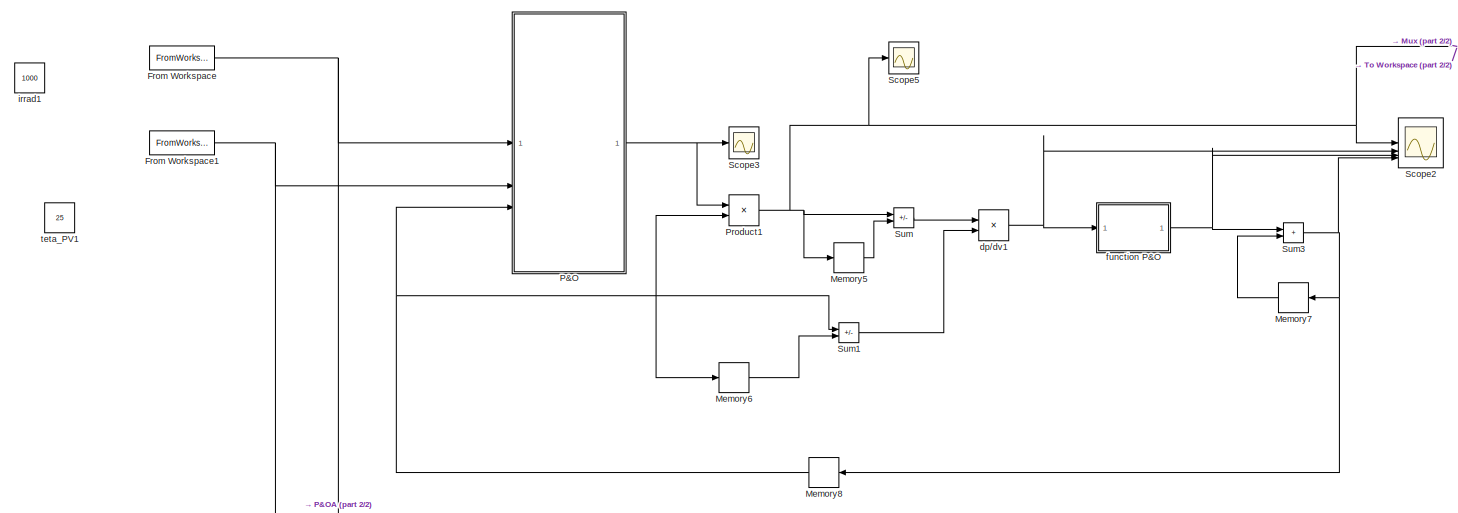
[diagram: root canvas - part 1/2, full width, top band]
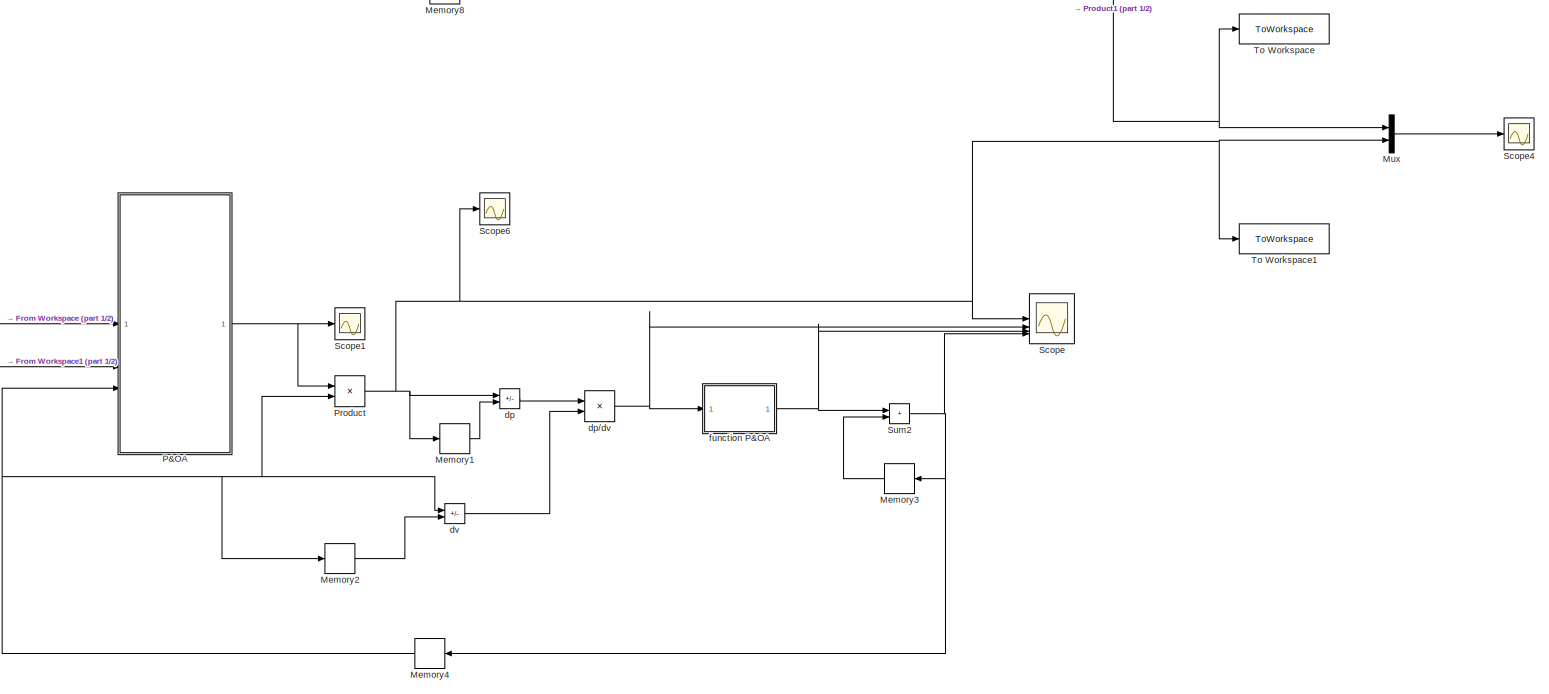
[diagram: root canvas - part 2/2, full width, bottom band]
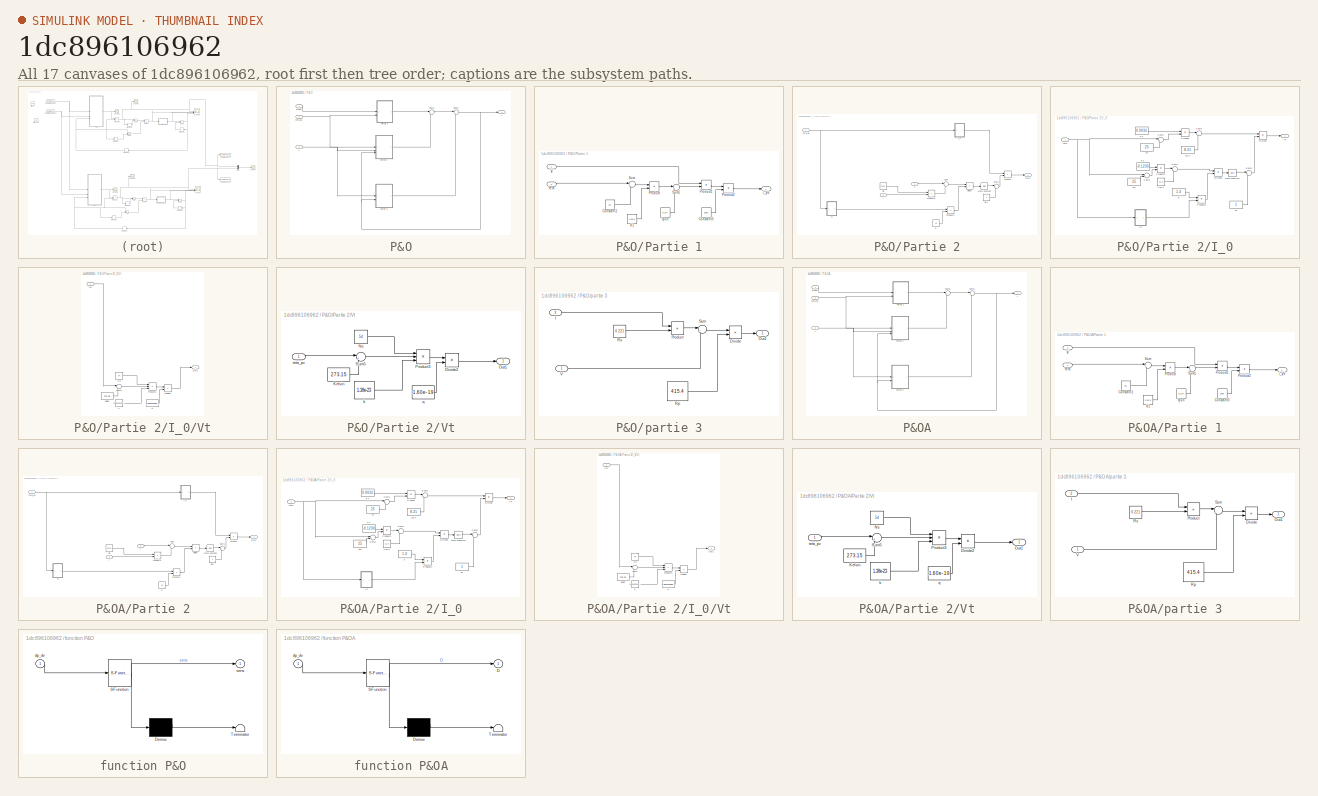
[diagram: thumbnail index - all 17 canvases of the model, root first then tree order]
MODEL slx_1dc896106962
KIND model
CONFIG AbsTol = auto
CONFIG EnableMultiTasking = off
CONFIG FixedStep = 4
CONFIG MaxStep = auto
CONFIG MinStep = auto
CONFIG RelTol = 1e-3
CONFIG SampleTimeConstraint = Unconstrained
CONFIG SolverName = ode1
CONFIG StartTime = 0.0
CONFIG StopTime = 86400
BLOCK [FromWorkspace] From Workspace
  VariableName = j_irradiance
BLOCK [FromWorkspace] From Workspace1
  VariableName = j_temperature
BLOCK [Memory] Memory1
BLOCK [Memory] Memory2
BLOCK [Memory] Memory3
  NameLocation = top
BLOCK [Memory] Memory4
  NameLocation = top
BLOCK [Memory] Memory5
BLOCK [Memory] Memory6
BLOCK [Memory] Memory7
  NameLocation = top
BLOCK [Memory] Memory8
  NameLocation = top
BLOCK [Mux] Mux
  DisplayOption = bar
  Inputs = 2
BLOCK [SubSystem] P&O
BLOCK [SubSystem] P&O/Partie 1
BLOCK [Constant] P&O/Partie 1/Constant1
  Value = 25
BLOCK [Constant] P&O/Partie 1/Constant3
  Value = 1000
BLOCK [Constant] P&O/Partie 1/Ipv,n
  Value = 8.214
BLOCK [Constant] P&O/Partie 1/K1
  Value = 3.2e-3
BLOCK [Product] P&O/Partie 1/Product
BLOCK [Product] P&O/Partie 1/Product1
BLOCK [Product] P&O/Partie 1/Product2
  Inputs = */
BLOCK [Sum] P&O/Partie 1/Sum
  Inputs = |+-
BLOCK [Sum] P&O/Partie 1/Sum1
  Inputs = |++
BLOCK [Inport] P&O/Partie 1/g
BLOCK [Outport] P&O/Partie 1/i_pv
BLOCK [Inport] P&O/Partie 1/teta
  Port = 2
BLOCK [SubSystem] P&O/Partie 2
BLOCK [Product] P&O/Partie 2/Divide
  Inputs = */
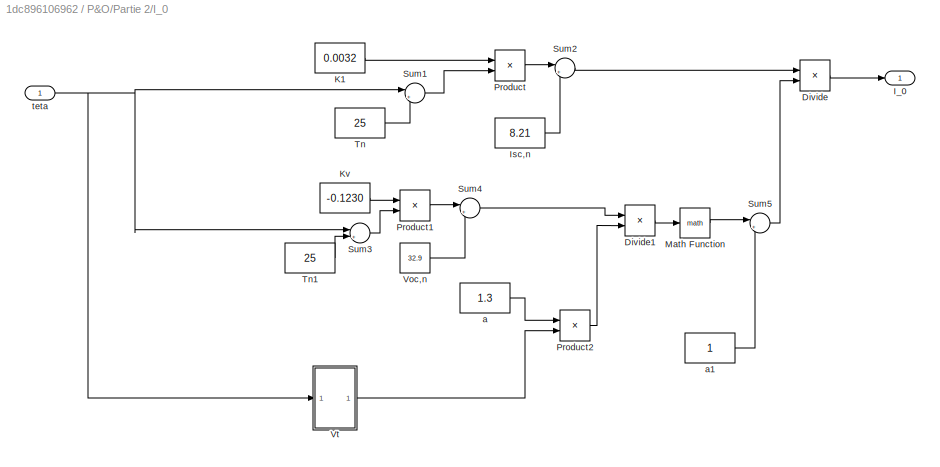
BLOCK [SubSystem] P&O/Partie 2/I_0
BLOCK [Product] P&O/Partie 2/I_0/Divide
  Inputs = */
BLOCK [Product] P&O/Partie 2/I_0/Divide1
  Inputs = */
BLOCK [Outport] P&O/Partie 2/I_0/I_0
BLOCK [Constant] P&O/Partie 2/I_0/Isc,n
  Value = 8.21
BLOCK [Constant] P&O/Partie 2/I_0/K1
  Value = 0.0032
BLOCK [Constant] P&O/Partie 2/I_0/Kv
  Value = -0.1230
BLOCK [Math] P&O/Partie 2/I_0/Math Function
BLOCK [Product] P&O/Partie 2/I_0/Product
BLOCK [Product] P&O/Partie 2/I_0/Product1
BLOCK [Product] P&O/Partie 2/I_0/Product2
BLOCK [Sum] P&O/Partie 2/I_0/Sum1
  Inputs = |+-
BLOCK [Sum] P&O/Partie 2/I_0/Sum2
  Inputs = |++
BLOCK [Sum] P&O/Partie 2/I_0/Sum3
  Inputs = |+-
BLOCK [Sum] P&O/Partie 2/I_0/Sum4
  Inputs = |++
BLOCK [Sum] P&O/Partie 2/I_0/Sum5
  Inputs = |+-
BLOCK [Constant] P&O/Partie 2/I_0/Tn
  Value = 25
BLOCK [Constant] P&O/Partie 2/I_0/Tn1
  Value = 25
BLOCK [Constant] P&O/Partie 2/I_0/Voc,n
  Value = 32.9
BLOCK [SubSystem] P&O/Partie 2/I_0/Vt
BLOCK [Product] P&O/Partie 2/I_0/Vt/Divide2
  Inputs = */
BLOCK [Inport] P&O/Partie 2/I_0/Vt/In1
BLOCK [Constant] P&O/Partie 2/I_0/Vt/Kelvin
  Value = 273.15
BLOCK [Constant] P&O/Partie 2/I_0/Vt/Ns
  Value = 54
BLOCK [Outport] P&O/Partie 2/I_0/Vt/Out1
BLOCK [Product] P&O/Partie 2/I_0/Vt/Product3
  Inputs = 3
BLOCK [Sum] P&O/Partie 2/I_0/Vt/Sum5
  Inputs = |++
BLOCK [Constant] P&O/Partie 2/I_0/Vt/k
  Value = 1.3806503e-23
BLOCK [Constant] P&O/Partie 2/I_0/Vt/q
  Value = 1.60217646e-19
BLOCK [Constant] P&O/Partie 2/I_0/a
  Value = 1.3
BLOCK [Constant] P&O/Partie 2/I_0/a1
BLOCK [Inport] P&O/Partie 2/I_0/teta
BLOCK [Math] P&O/Partie 2/Math Function
BLOCK [Outport] P&O/Partie 2/Out2
BLOCK [Product] P&O/Partie 2/Product
BLOCK [Product] P&O/Partie 2/Product1
BLOCK [Product] P&O/Partie 2/Product2
BLOCK [Constant] P&O/Partie 2/Rs
  Value = 0.221
BLOCK [Constant] P&O/Partie 2/Rs1
BLOCK [Sum] P&O/Partie 2/Sum
  Inputs = |++
BLOCK [Sum] P&O/Partie 2/Sum1
  Inputs = |+-
BLOCK [Inport] P&O/Partie 2/V
  Port = 2
BLOCK [SubSystem] P&O/Partie 2/Vt
BLOCK [Product] P&O/Partie 2/Vt/Divide2
  Inputs = */
BLOCK [Constant] P&O/Partie 2/Vt/Kelvin
  Value = 273.15
BLOCK [Constant] P&O/Partie 2/Vt/Ns
  Value = 54
BLOCK [Outport] P&O/Partie 2/Vt/Out1
BLOCK [Product] P&O/Partie 2/Vt/Product3
  Inputs = 3
BLOCK [Sum] P&O/Partie 2/Vt/Sum5
  Inputs = |++
BLOCK [Constant] P&O/Partie 2/Vt/k
  Value = 1.38e-23
BLOCK [Constant] P&O/Partie 2/Vt/q
  Value = 1.60e-19
BLOCK [Inport] P&O/Partie 2/Vt/teta_pv
BLOCK [Constant] P&O/Partie 2/a
  Value = 1.3
BLOCK [Inport] P&O/Partie 2/i
  Port = 3
BLOCK [Inport] P&O/Partie 2/teta_pv
BLOCK [Sum] P&O/Sum6
  Inputs = |+-
BLOCK [Sum] P&O/Sum8
  Inputs = |+-
BLOCK [Inport] P&O/V
  Port = 3
BLOCK [Outport] P&O/i
BLOCK [Inport] P&O/irrad1
BLOCK [SubSystem] P&O/partie 3
BLOCK [Product] P&O/partie 3/Divide
  Inputs = */
BLOCK [Inport] P&O/partie 3/I
  Port = 2
BLOCK [Outport] P&O/partie 3/Out1
BLOCK [Product] P&O/partie 3/Product
BLOCK [Constant] P&O/partie 3/Rp
  Value = 415.4
BLOCK [Constant] P&O/partie 3/Rs
  Value = 0.221
BLOCK [Sum] P&O/partie 3/Sum
  Inputs = |++
BLOCK [Inport] P&O/partie 3/V
BLOCK [Inport] P&O/teta_pv
  Port = 2
BLOCK [SubSystem] P&OA
BLOCK [SubSystem] P&OA/Partie 1
BLOCK [Constant] P&OA/Partie 1/Constant1
  Value = 25
BLOCK [Constant] P&OA/Partie 1/Constant3
  Value = 1000
BLOCK [Constant] P&OA/Partie 1/Ipv,n
  Value = 8.214
BLOCK [Constant] P&OA/Partie 1/K1
  Value = 3.2e-3
BLOCK [Product] P&OA/Partie 1/Product
BLOCK [Product] P&OA/Partie 1/Product1
BLOCK [Product] P&OA/Partie 1/Product2
  Inputs = */
BLOCK [Sum] P&OA/Partie 1/Sum
  Inputs = |+-
BLOCK [Sum] P&OA/Partie 1/Sum1
  Inputs = |++
BLOCK [Inport] P&OA/Partie 1/g
BLOCK [Outport] P&OA/Partie 1/i_pv
BLOCK [Inport] P&OA/Partie 1/teta
  Port = 2
BLOCK [SubSystem] P&OA/Partie 2
BLOCK [Product] P&OA/Partie 2/Divide
  Inputs = */
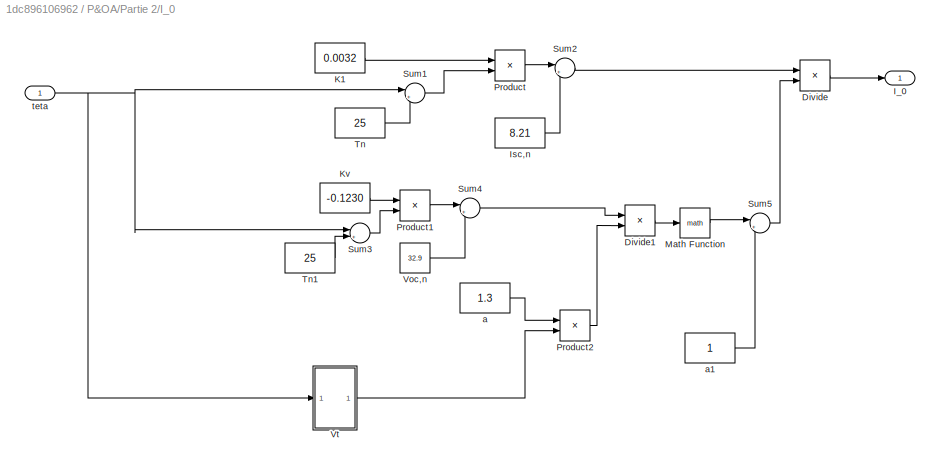
BLOCK [SubSystem] P&OA/Partie 2/I_0
BLOCK [Product] P&OA/Partie 2/I_0/Divide
  Inputs = */
BLOCK [Product] P&OA/Partie 2/I_0/Divide1
  Inputs = */
BLOCK [Outport] P&OA/Partie 2/I_0/I_0
BLOCK [Constant] P&OA/Partie 2/I_0/Isc,n
  Value = 8.21
BLOCK [Constant] P&OA/Partie 2/I_0/K1
  Value = 0.0032
BLOCK [Constant] P&OA/Partie 2/I_0/Kv
  Value = -0.1230
BLOCK [Math] P&OA/Partie 2/I_0/Math Function
BLOCK [Product] P&OA/Partie 2/I_0/Product
BLOCK [Product] P&OA/Partie 2/I_0/Product1
BLOCK [Product] P&OA/Partie 2/I_0/Product2
BLOCK [Sum] P&OA/Partie 2/I_0/Sum1
  Inputs = |+-
BLOCK [Sum] P&OA/Partie 2/I_0/Sum2
  Inputs = |++
BLOCK [Sum] P&OA/Partie 2/I_0/Sum3
  Inputs = |+-
BLOCK [Sum] P&OA/Partie 2/I_0/Sum4
  Inputs = |++
BLOCK [Sum] P&OA/Partie 2/I_0/Sum5
  Inputs = |+-
BLOCK [Constant] P&OA/Partie 2/I_0/Tn
  Value = 25
BLOCK [Constant] P&OA/Partie 2/I_0/Tn1
  Value = 25
BLOCK [Constant] P&OA/Partie 2/I_0/Voc,n
  Value = 32.9
BLOCK [SubSystem] P&OA/Partie 2/I_0/Vt
BLOCK [Product] P&OA/Partie 2/I_0/Vt/Divide2
  Inputs = */
BLOCK [Inport] P&OA/Partie 2/I_0/Vt/In1
BLOCK [Constant] P&OA/Partie 2/I_0/Vt/Kelvin
  Value = 273.15
BLOCK [Constant] P&OA/Partie 2/I_0/Vt/Ns
  Value = 54
BLOCK [Outport] P&OA/Partie 2/I_0/Vt/Out1
BLOCK [Product] P&OA/Partie 2/I_0/Vt/Product3
  Inputs = 3
BLOCK [Sum] P&OA/Partie 2/I_0/Vt/Sum5
  Inputs = |++
BLOCK [Constant] P&OA/Partie 2/I_0/Vt/k
  Value = 1.3806503e-23
BLOCK [Constant] P&OA/Partie 2/I_0/Vt/q
  Value = 1.60217646e-19
BLOCK [Constant] P&OA/Partie 2/I_0/a
  Value = 1.3
BLOCK [Constant] P&OA/Partie 2/I_0/a1
BLOCK [Inport] P&OA/Partie 2/I_0/teta
BLOCK [Math] P&OA/Partie 2/Math Function
BLOCK [Outport] P&OA/Partie 2/Out2
BLOCK [Product] P&OA/Partie 2/Product
BLOCK [Product] P&OA/Partie 2/Product1
BLOCK [Product] P&OA/Partie 2/Product2
BLOCK [Constant] P&OA/Partie 2/Rs
  Value = 0.221
BLOCK [Constant] P&OA/Partie 2/Rs1
BLOCK [Sum] P&OA/Partie 2/Sum
  Inputs = |++
BLOCK [Sum] P&OA/Partie 2/Sum1
  Inputs = |+-
BLOCK [Inport] P&OA/Partie 2/V
  Port = 2
BLOCK [SubSystem] P&OA/Partie 2/Vt
BLOCK [Product] P&OA/Partie 2/Vt/Divide2
  Inputs = */
BLOCK [Constant] P&OA/Partie 2/Vt/Kelvin
  Value = 273.15
BLOCK [Constant] P&OA/Partie 2/Vt/Ns
  Value = 54
BLOCK [Outport] P&OA/Partie 2/Vt/Out1
BLOCK [Product] P&OA/Partie 2/Vt/Product3
  Inputs = 3
BLOCK [Sum] P&OA/Partie 2/Vt/Sum5
  Inputs = |++
BLOCK [Constant] P&OA/Partie 2/Vt/k
  Value = 1.38e-23
BLOCK [Constant] P&OA/Partie 2/Vt/q
  Value = 1.60e-19
BLOCK [Inport] P&OA/Partie 2/Vt/teta_pv
BLOCK [Constant] P&OA/Partie 2/a
  Value = 1.3
BLOCK [Inport] P&OA/Partie 2/i
  Port = 3
BLOCK [Inport] P&OA/Partie 2/teta_pv
BLOCK [Sum] P&OA/Sum6
  Inputs = |+-
BLOCK [Sum] P&OA/Sum8
  Inputs = |+-
BLOCK [Inport] P&OA/V
  Port = 3
BLOCK [Outport] P&OA/i
BLOCK [Inport] P&OA/irrad1
BLOCK [SubSystem] P&OA/partie 3
BLOCK [Product] P&OA/partie 3/Divide
  Inputs = */
BLOCK [Inport] P&OA/partie 3/I
  Port = 2
BLOCK [Outport] P&OA/partie 3/Out1
BLOCK [Product] P&OA/partie 3/Product
BLOCK [Constant] P&OA/partie 3/Rp
  Value = 415.4
BLOCK [Constant] P&OA/partie 3/Rs
  Value = 0.221
BLOCK [Sum] P&OA/partie 3/Sum
  Inputs = |++
BLOCK [Inport] P&OA/partie 3/V
BLOCK [Inport] P&OA/teta_pv
  Port = 2
BLOCK [Product] Product
BLOCK [Product] Product1
BLOCK [Scope] Scope
  Floating = off
  NumInputPorts = 4
  ScopeSpecificationString = Simulink.scopes.TimeScopeBlockCfg('CurrentConfiguration', extmgr.ConfigurationSet(extmgr.Configuration('Core','General UI',true),extmgr.Configuration('Core','Source UI',true),extmgr.Configuration('Sources','WiredSimulink',true),extmgr.Configuration('Visuals','Time Domain',true,'SerializedDisplays',{struct('MinYLimReal','-25.08659','MaxYLimReal','225.36884','YLabelReal','','MinYLimMag','0.00000','M...<+3484ch>
BLOCK [Scope] Scope1
  Floating = off
  NumInputPorts = 1
  ScopeSpecificationString = Simulink.scopes.TimeScopeBlockCfg('CurrentConfiguration', extmgr.ConfigurationSet(extmgr.Configuration('Core','General UI',true),extmgr.Configuration('Core','Source UI',true),extmgr.Configuration('Sources','WiredSimulink',true,'DataLoggingVariableName','ScopeData1'),extmgr.Configuration('Visuals','Time Domain',true,'SerializedDisplays',{struct('MinYLimReal','-0.00917','MaxYLimReal','0.07977','YLab...<+1389ch>
BLOCK [Scope] Scope2
  Floating = off
  NumInputPorts = 4
  ScopeSpecificationString = Simulink.scopes.TimeScopeBlockCfg('CurrentConfiguration', extmgr.ConfigurationSet(extmgr.Configuration('Core','General UI',true),extmgr.Configuration('Core','Source UI',true),extmgr.Configuration('Sources','WiredSimulink',true,'DataLoggingVariableName','ScopeData1'),extmgr.Configuration('Visuals','Time Domain',true,'SerializedDisplays',{struct('MinYLimReal','-0.08078','MaxYLimReal','0.1454','YLabe...<+3462ch>
BLOCK [Scope] Scope3
  Floating = off
  NumInputPorts = 1
  ScopeSpecificationString = Simulink.scopes.TimeScopeBlockCfg('CurrentConfiguration', extmgr.ConfigurationSet(extmgr.Configuration('Core','General UI',true),extmgr.Configuration('Core','Source UI',true),extmgr.Configuration('Sources','WiredSimulink',true,'DataLoggingVariableName','ScopeData2'),extmgr.Configuration('Visuals','Time Domain',true,'SerializedDisplays',{struct('MinYLimReal','-0.01969','MaxYLimReal','0.08098','YLab...<+1388ch>
BLOCK [Scope] Scope4
  Floating = off
  NumInputPorts = 1
  ScopeSpecificationString = Simulink.scopes.TimeScopeBlockCfg('CurrentConfiguration', extmgr.ConfigurationSet(extmgr.Configuration('Core','General UI',true),extmgr.Configuration('Core','Source UI',true),extmgr.Configuration('Sources','WiredSimulink',true,'DataLoggingVariableName','ScopeData1'),extmgr.Configuration('Visuals','Time Domain',true,'SerializedDisplays',{struct('MinYLimReal','-11.29218','MaxYLimReal','97.86409','YL...<+1496ch>
BLOCK [Scope] Scope5
  Floating = off
  NumInputPorts = 1
  ScopeSpecificationString = Simulink.scopes.TimeScopeBlockCfg('CurrentConfiguration', extmgr.ConfigurationSet(extmgr.Configuration('Core','General UI',true),extmgr.Configuration('Core','Source UI',true),extmgr.Configuration('Sources','WiredSimulink',true,'DataLoggingVariableName','ScopeData1'),extmgr.Configuration('Visuals','Time Domain',true,'SerializedDisplays',{struct('MinYLimReal','-0.01969','MaxYLimReal','0.08098','YLab...<+1388ch>
BLOCK [Scope] Scope6
  Floating = off
  NumInputPorts = 1
  ScopeSpecificationString = Simulink.scopes.TimeScopeBlockCfg('CurrentConfiguration', extmgr.ConfigurationSet(extmgr.Configuration('Core','General UI',true),extmgr.Configuration('Core','Source UI',true),extmgr.Configuration('Sources','WiredSimulink',true,'DataLoggingVariableName','ScopeData2'),extmgr.Configuration('Visuals','Time Domain',true,'SerializedDisplays',{struct('MinYLimReal','-0.01969','MaxYLimReal','0.08098','YLab...<+1388ch>
BLOCK [Sum] Sum
  IconShape = rectangular
  Inputs = +-
BLOCK [Sum] Sum1
  IconShape = rectangular
  Inputs = +-
BLOCK [Sum] Sum2
  IconShape = rectangular
BLOCK [Sum] Sum3
  IconShape = rectangular
BLOCK [ToWorkspace] To Workspace
  FixptAsFi = on
  MaxDataPoints = inf
  SampleTime = -1
  VariableName = PO
BLOCK [ToWorkspace] To Workspace1
  FixptAsFi = on
  MaxDataPoints = inf
  SampleTime = -1
  VariableName = POA
BLOCK [Sum] dp
  IconShape = rectangular
  Inputs = +-
BLOCK [Product] dp//dv
  Inputs = */
BLOCK [Product] dp//dv1
  Inputs = */
BLOCK [Sum] dv
  IconShape = rectangular
  Inputs = +-
BLOCK [SubSystem] function P&O
  ErrorFcn = Stateflow.Translate.translate
  PermitHierarchicalResolution = ExplicitOnly
  SFBlockType = MATLAB Function
  TreatAsAtomicUnit = on
BLOCK [Demux] function P&O/ Demux 
  Outputs = 1
BLOCK [S-Function] function P&O/ SFunction 
  EnableBusSupport = on
  FunctionName = sf_sfun
  PortCounts = [1 2]
  SFcnIsStateOwnerBlock = off
  SFunctionDeploymentMode = off
  Tag = Stateflow S-Function 1
BLOCK [Terminator] function P&O/ Terminator 
BLOCK [Inport] function P&O/dp_dv
BLOCK [Outport] function P&O/sens
BLOCK [SubSystem] function P&OA
  ErrorFcn = Stateflow.Translate.translate
  PermitHierarchicalResolution = ExplicitOnly
  SFBlockType = MATLAB Function
  TreatAsAtomicUnit = on
BLOCK [Demux] function P&OA/ Demux 
  Outputs = 1
BLOCK [S-Function] function P&OA/ SFunction 
  EnableBusSupport = on
  FunctionName = sf_sfun
  PortCounts = [1 2]
  SFcnIsStateOwnerBlock = off
  SFunctionDeploymentMode = off
  Tag = Stateflow S-Function 2
BLOCK [Terminator] function P&OA/ Terminator 
BLOCK [Outport] function P&OA/D
BLOCK [Inport] function P&OA/dp_dv
BLOCK [Constant] irrad1
  Value = 1000
BLOCK [Constant] teta_PV1
  Value = 25
NET From Workspace1:1 -> P&O:2, P&OA:2
NET From Workspace:1 -> P&O:1, P&OA:1
LINE Memory1:1 -> dp:2
LINE Memory2:1 -> dv:2
LINE Memory3:1 -> Sum2:2
NET Memory4:1 -> Memory2:1, P&OA:3, Product:2, dv:1
LINE Memory5:1 -> Sum:2
LINE Memory6:1 -> Sum1:2
LINE Memory7:1 -> Sum3:2
NET Memory8:1 -> Memory6:1, P&O:3, Product1:2, Sum1:1
LINE Mux:1 -> Scope4:1
LINE P&O/Partie 1/Constant1:1 -> P&O/Partie 1/Sum:2
LINE P&O/Partie 1/Constant3:1 -> P&O/Partie 1/Product2:2
LINE P&O/Partie 1/Ipv,n:1 -> P&O/Partie 1/Sum1:2
LINE P&O/Partie 1/K1:1 -> P&O/Partie 1/Product:2
LINE P&O/Partie 1/Product1:1 -> P&O/Partie 1/Product2:1
LINE P&O/Partie 1/Product2:1 -> P&O/Partie 1/i_pv:1
LINE P&O/Partie 1/Product:1 -> P&O/Partie 1/Sum1:1
LINE P&O/Partie 1/Sum1:1 -> P&O/Partie 1/Product1:2
LINE P&O/Partie 1/Sum:1 -> P&O/Partie 1/Product:1
LINE P&O/Partie 1/g:1 -> P&O/Partie 1/Product1:1
LINE P&O/Partie 1/teta:1 -> P&O/Partie 1/Sum:1
LINE P&O/Partie 1:1 -> P&O/Sum6:1
LINE P&O/Partie 2/Divide:1 -> P&O/Partie 2/Math Function:1
LINE P&O/Partie 2/I_0/Divide1:1 -> P&O/Partie 2/I_0/Math Function:1
LINE P&O/Partie 2/I_0/Divide:1 -> P&O/Partie 2/I_0/I_0:1
LINE P&O/Partie 2/I_0/Isc,n:1 -> P&O/Partie 2/I_0/Sum2:2
LINE P&O/Partie 2/I_0/K1:1 -> P&O/Partie 2/I_0/Product:1
LINE P&O/Partie 2/I_0/Kv:1 -> P&O/Partie 2/I_0/Product1:1
LINE P&O/Partie 2/I_0/Math Function:1 -> P&O/Partie 2/I_0/Sum5:1
LINE P&O/Partie 2/I_0/Product1:1 -> P&O/Partie 2/I_0/Sum4:1
LINE P&O/Partie 2/I_0/Product2:1 -> P&O/Partie 2/I_0/Divide1:2
LINE P&O/Partie 2/I_0/Product:1 -> P&O/Partie 2/I_0/Sum2:1
LINE P&O/Partie 2/I_0/Sum1:1 -> P&O/Partie 2/I_0/Product:2
LINE P&O/Partie 2/I_0/Sum2:1 -> P&O/Partie 2/I_0/Divide:1
LINE P&O/Partie 2/I_0/Sum3:1 -> P&O/Partie 2/I_0/Product1:2
LINE P&O/Partie 2/I_0/Sum4:1 -> P&O/Partie 2/I_0/Divide1:1
LINE P&O/Partie 2/I_0/Sum5:1 -> P&O/Partie 2/I_0/Divide:2
LINE P&O/Partie 2/I_0/Tn1:1 -> P&O/Partie 2/I_0/Sum3:2
LINE P&O/Partie 2/I_0/Tn:1 -> P&O/Partie 2/I_0/Sum1:2
LINE P&O/Partie 2/I_0/Voc,n:1 -> P&O/Partie 2/I_0/Sum4:2
LINE P&O/Partie 2/I_0/Vt/Divide2:1 -> P&O/Partie 2/I_0/Vt/Out1:1
LINE P&O/Partie 2/I_0/Vt/In1:1 -> P&O/Partie 2/I_0/Vt/Sum5:1
LINE P&O/Partie 2/I_0/Vt/Kelvin:1 -> P&O/Partie 2/I_0/Vt/Sum5:2
LINE P&O/Partie 2/I_0/Vt/Ns:1 -> P&O/Partie 2/I_0/Vt/Product3:1
LINE P&O/Partie 2/I_0/Vt/Product3:1 -> P&O/Partie 2/I_0/Vt/Divide2:1
LINE P&O/Partie 2/I_0/Vt/Sum5:1 -> P&O/Partie 2/I_0/Vt/Product3:2
LINE P&O/Partie 2/I_0/Vt/k:1 -> P&O/Partie 2/I_0/Vt/Product3:3
LINE P&O/Partie 2/I_0/Vt/q:1 -> P&O/Partie 2/I_0/Vt/Divide2:2
LINE P&O/Partie 2/I_0/Vt:1 -> P&O/Partie 2/I_0/Product2:2
LINE P&O/Partie 2/I_0/a1:1 -> P&O/Partie 2/I_0/Sum5:2
LINE P&O/Partie 2/I_0/a:1 -> P&O/Partie 2/I_0/Product2:1
NET P&O/Partie 2/I_0/teta:1 -> P&O/Partie 2/I_0/Sum1:1, P&O/Partie 2/I_0/Sum3:1, P&O/Partie 2/I_0/Vt:1
LINE P&O/Partie 2/I_0:1 -> P&O/Partie 2/Product:1
LINE P&O/Partie 2/Math Function:1 -> P&O/Partie 2/Sum1:1
LINE P&O/Partie 2/Product1:1 -> P&O/Partie 2/Sum:2
LINE P&O/Partie 2/Product2:1 -> P&O/Partie 2/Divide:2
LINE P&O/Partie 2/Product:1 -> P&O/Partie 2/Out2:1
LINE P&O/Partie 2/Rs1:1 -> P&O/Partie 2/Sum1:2
LINE P&O/Partie 2/Rs:1 -> P&O/Partie 2/Product1:1
LINE P&O/Partie 2/Sum1:1 -> P&O/Partie 2/Product:2
LINE P&O/Partie 2/Sum:1 -> P&O/Partie 2/Divide:1
LINE P&O/Partie 2/V:1 -> P&O/Partie 2/Sum:1
LINE P&O/Partie 2/Vt/Divide2:1 -> P&O/Partie 2/Vt/Out1:1
LINE P&O/Partie 2/Vt/Kelvin:1 -> P&O/Partie 2/Vt/Sum5:2
LINE P&O/Partie 2/Vt/Ns:1 -> P&O/Partie 2/Vt/Product3:1
LINE P&O/Partie 2/Vt/Product3:1 -> P&O/Partie 2/Vt/Divide2:1
LINE P&O/Partie 2/Vt/Sum5:1 -> P&O/Partie 2/Vt/Product3:2
LINE P&O/Partie 2/Vt/k:1 -> P&O/Partie 2/Vt/Product3:3
LINE P&O/Partie 2/Vt/q:1 -> P&O/Partie 2/Vt/Divide2:2
LINE P&O/Partie 2/Vt/teta_pv:1 -> P&O/Partie 2/Vt/Sum5:1
LINE P&O/Partie 2/Vt:1 -> P&O/Partie 2/Product2:1
LINE P&O/Partie 2/a:1 -> P&O/Partie 2/Product2:2
LINE P&O/Partie 2/i:1 -> P&O/Partie 2/Product1:2
NET P&O/Partie 2/teta_pv:1 -> P&O/Partie 2/I_0:1, P&O/Partie 2/Vt:1
LINE P&O/Partie 2:1 -> P&O/Sum6:2
LINE P&O/Sum6:1 -> P&O/Sum8:1
NET P&O/Sum8:1 -> P&O/Partie 2:3, P&O/i:1, P&O/partie 3:2
NET P&O/V:1 -> P&O/Partie 2:2, P&O/partie 3:1
LINE P&O/irrad1:1 -> P&O/Partie 1:1
LINE P&O/partie 3/Divide:1 -> P&O/partie 3/Out1:1
LINE P&O/partie 3/I:1 -> P&O/partie 3/Product:1
LINE P&O/partie 3/Product:1 -> P&O/partie 3/Sum:1
LINE P&O/partie 3/Rp:1 -> P&O/partie 3/Divide:2
LINE P&O/partie 3/Rs:1 -> P&O/partie 3/Product:2
LINE P&O/partie 3/Sum:1 -> P&O/partie 3/Divide:1
LINE P&O/partie 3/V:1 -> P&O/partie 3/Sum:2
LINE P&O/partie 3:1 -> P&O/Sum8:2
NET P&O/teta_pv:1 -> P&O/Partie 1:2, P&O/Partie 2:1
NET P&O:1 -> Product1:1, Scope3:1
LINE P&OA/Partie 1/Constant1:1 -> P&OA/Partie 1/Sum:2
LINE P&OA/Partie 1/Constant3:1 -> P&OA/Partie 1/Product2:2
LINE P&OA/Partie 1/Ipv,n:1 -> P&OA/Partie 1/Sum1:2
LINE P&OA/Partie 1/K1:1 -> P&OA/Partie 1/Product:2
LINE P&OA/Partie 1/Product1:1 -> P&OA/Partie 1/Product2:1
LINE P&OA/Partie 1/Product2:1 -> P&OA/Partie 1/i_pv:1
LINE P&OA/Partie 1/Product:1 -> P&OA/Partie 1/Sum1:1
LINE P&OA/Partie 1/Sum1:1 -> P&OA/Partie 1/Product1:2
LINE P&OA/Partie 1/Sum:1 -> P&OA/Partie 1/Product:1
LINE P&OA/Partie 1/g:1 -> P&OA/Partie 1/Product1:1
LINE P&OA/Partie 1/teta:1 -> P&OA/Partie 1/Sum:1
LINE P&OA/Partie 1:1 -> P&OA/Sum6:1
LINE P&OA/Partie 2/Divide:1 -> P&OA/Partie 2/Math Function:1
LINE P&OA/Partie 2/I_0/Divide1:1 -> P&OA/Partie 2/I_0/Math Function:1
LINE P&OA/Partie 2/I_0/Divide:1 -> P&OA/Partie 2/I_0/I_0:1
LINE P&OA/Partie 2/I_0/Isc,n:1 -> P&OA/Partie 2/I_0/Sum2:2
LINE P&OA/Partie 2/I_0/K1:1 -> P&OA/Partie 2/I_0/Product:1
LINE P&OA/Partie 2/I_0/Kv:1 -> P&OA/Partie 2/I_0/Product1:1
LINE P&OA/Partie 2/I_0/Math Function:1 -> P&OA/Partie 2/I_0/Sum5:1
LINE P&OA/Partie 2/I_0/Product1:1 -> P&OA/Partie 2/I_0/Sum4:1
LINE P&OA/Partie 2/I_0/Product2:1 -> P&OA/Partie 2/I_0/Divide1:2
LINE P&OA/Partie 2/I_0/Product:1 -> P&OA/Partie 2/I_0/Sum2:1
LINE P&OA/Partie 2/I_0/Sum1:1 -> P&OA/Partie 2/I_0/Product:2
LINE P&OA/Partie 2/I_0/Sum2:1 -> P&OA/Partie 2/I_0/Divide:1
LINE P&OA/Partie 2/I_0/Sum3:1 -> P&OA/Partie 2/I_0/Product1:2
LINE P&OA/Partie 2/I_0/Sum4:1 -> P&OA/Partie 2/I_0/Divide1:1
LINE P&OA/Partie 2/I_0/Sum5:1 -> P&OA/Partie 2/I_0/Divide:2
LINE P&OA/Partie 2/I_0/Tn1:1 -> P&OA/Partie 2/I_0/Sum3:2
LINE P&OA/Partie 2/I_0/Tn:1 -> P&OA/Partie 2/I_0/Sum1:2
LINE P&OA/Partie 2/I_0/Voc,n:1 -> P&OA/Partie 2/I_0/Sum4:2
LINE P&OA/Partie 2/I_0/Vt/Divide2:1 -> P&OA/Partie 2/I_0/Vt/Out1:1
LINE P&OA/Partie 2/I_0/Vt/In1:1 -> P&OA/Partie 2/I_0/Vt/Sum5:1
LINE P&OA/Partie 2/I_0/Vt/Kelvin:1 -> P&OA/Partie 2/I_0/Vt/Sum5:2
LINE P&OA/Partie 2/I_0/Vt/Ns:1 -> P&OA/Partie 2/I_0/Vt/Product3:1
LINE P&OA/Partie 2/I_0/Vt/Product3:1 -> P&OA/Partie 2/I_0/Vt/Divide2:1
LINE P&OA/Partie 2/I_0/Vt/Sum5:1 -> P&OA/Partie 2/I_0/Vt/Product3:2
LINE P&OA/Partie 2/I_0/Vt/k:1 -> P&OA/Partie 2/I_0/Vt/Product3:3
LINE P&OA/Partie 2/I_0/Vt/q:1 -> P&OA/Partie 2/I_0/Vt/Divide2:2
LINE P&OA/Partie 2/I_0/Vt:1 -> P&OA/Partie 2/I_0/Product2:2
LINE P&OA/Partie 2/I_0/a1:1 -> P&OA/Partie 2/I_0/Sum5:2
LINE P&OA/Partie 2/I_0/a:1 -> P&OA/Partie 2/I_0/Product2:1
NET P&OA/Partie 2/I_0/teta:1 -> P&OA/Partie 2/I_0/Sum1:1, P&OA/Partie 2/I_0/Sum3:1, P&OA/Partie 2/I_0/Vt:1
LINE P&OA/Partie 2/I_0:1 -> P&OA/Partie 2/Product:1
LINE P&OA/Partie 2/Math Function:1 -> P&OA/Partie 2/Sum1:1
LINE P&OA/Partie 2/Product1:1 -> P&OA/Partie 2/Sum:2
LINE P&OA/Partie 2/Product2:1 -> P&OA/Partie 2/Divide:2
LINE P&OA/Partie 2/Product:1 -> P&OA/Partie 2/Out2:1
LINE P&OA/Partie 2/Rs1:1 -> P&OA/Partie 2/Sum1:2
LINE P&OA/Partie 2/Rs:1 -> P&OA/Partie 2/Product1:1
LINE P&OA/Partie 2/Sum1:1 -> P&OA/Partie 2/Product:2
LINE P&OA/Partie 2/Sum:1 -> P&OA/Partie 2/Divide:1
LINE P&OA/Partie 2/V:1 -> P&OA/Partie 2/Sum:1
LINE P&OA/Partie 2/Vt/Divide2:1 -> P&OA/Partie 2/Vt/Out1:1
LINE P&OA/Partie 2/Vt/Kelvin:1 -> P&OA/Partie 2/Vt/Sum5:2
LINE P&OA/Partie 2/Vt/Ns:1 -> P&OA/Partie 2/Vt/Product3:1
LINE P&OA/Partie 2/Vt/Product3:1 -> P&OA/Partie 2/Vt/Divide2:1
LINE P&OA/Partie 2/Vt/Sum5:1 -> P&OA/Partie 2/Vt/Product3:2
LINE P&OA/Partie 2/Vt/k:1 -> P&OA/Partie 2/Vt/Product3:3
LINE P&OA/Partie 2/Vt/q:1 -> P&OA/Partie 2/Vt/Divide2:2
LINE P&OA/Partie 2/Vt/teta_pv:1 -> P&OA/Partie 2/Vt/Sum5:1
LINE P&OA/Partie 2/Vt:1 -> P&OA/Partie 2/Product2:1
LINE P&OA/Partie 2/a:1 -> P&OA/Partie 2/Product2:2
LINE P&OA/Partie 2/i:1 -> P&OA/Partie 2/Product1:2
NET P&OA/Partie 2/teta_pv:1 -> P&OA/Partie 2/I_0:1, P&OA/Partie 2/Vt:1
LINE P&OA/Partie 2:1 -> P&OA/Sum6:2
LINE P&OA/Sum6:1 -> P&OA/Sum8:1
NET P&OA/Sum8:1 -> P&OA/Partie 2:3, P&OA/i:1, P&OA/partie 3:2
NET P&OA/V:1 -> P&OA/Partie 2:2, P&OA/partie 3:1
LINE P&OA/irrad1:1 -> P&OA/Partie 1:1
LINE P&OA/partie 3/Divide:1 -> P&OA/partie 3/Out1:1
LINE P&OA/partie 3/I:1 -> P&OA/partie 3/Product:1
LINE P&OA/partie 3/Product:1 -> P&OA/partie 3/Sum:1
LINE P&OA/partie 3/Rp:1 -> P&OA/partie 3/Divide:2
LINE P&OA/partie 3/Rs:1 -> P&OA/partie 3/Product:2
LINE P&OA/partie 3/Sum:1 -> P&OA/partie 3/Divide:1
LINE P&OA/partie 3/V:1 -> P&OA/partie 3/Sum:2
LINE P&OA/partie 3:1 -> P&OA/Sum8:2
NET P&OA/teta_pv:1 -> P&OA/Partie 1:2, P&OA/Partie 2:1
NET P&OA:1 -> Product:1, Scope1:1
NET Product1:1 -> Memory5:1, Mux:1, Scope2:1, Scope5:1, Sum:1, To Workspace:1
NET Product:1 -> Memory1:1, Mux:2, Scope6:1, Scope:1, To Workspace1:1, dp:1
LINE Sum1:1 -> dp//dv1:2
NET Sum2:1 -> Memory3:1, Memory4:1, Scope:4
NET Sum3:1 -> Memory7:1, Memory8:1, Scope2:4
LINE Sum:1 -> dp//dv1:1
NET dp//dv1:1 -> Scope2:2, function P&O:1
NET dp//dv:1 -> Scope:2, function P&OA:1
LINE dp:1 -> dp//dv:1
LINE dv:1 -> dp//dv:2
NET function P&O:1 -> Scope2:3, Sum3:1
NET function P&OA:1 -> Scope:3, Sum2:1
note: NET lines group one-source signal fan-out (src -> all destinations, sorted); 1:1 wires keep LINE
CHART function P&OA states=1 transitions=1
  STATE_LABEL 'eML_blk_kernel()'
  STATE_LABEL 'SCRIPT:\nfunction D=fcn(dp_dv)\ndDbig=1\ndDsmall=0.2\nD=0\nerror=6\nif dp_dv<error\n    dD=dDbig\nelse\n    dD=dDsmall\nend\nif dp_dv>0\n        D=D+dD\n    else\n        D=D-dD\nend\n\n    \n '
CHART function P&O states=1 transitions=1
  STATE_LABEL 'eML_blk_kernel()'
  STATE_LABEL 'SCRIPT:\nfunction sens = fcn(dp_dv)\nif dp_dv<0\n    sens=-1;\nelse \n    sens=1;\nend\n'
CHART  states=0 transitions=0
CHART  states=0 transitions=0
